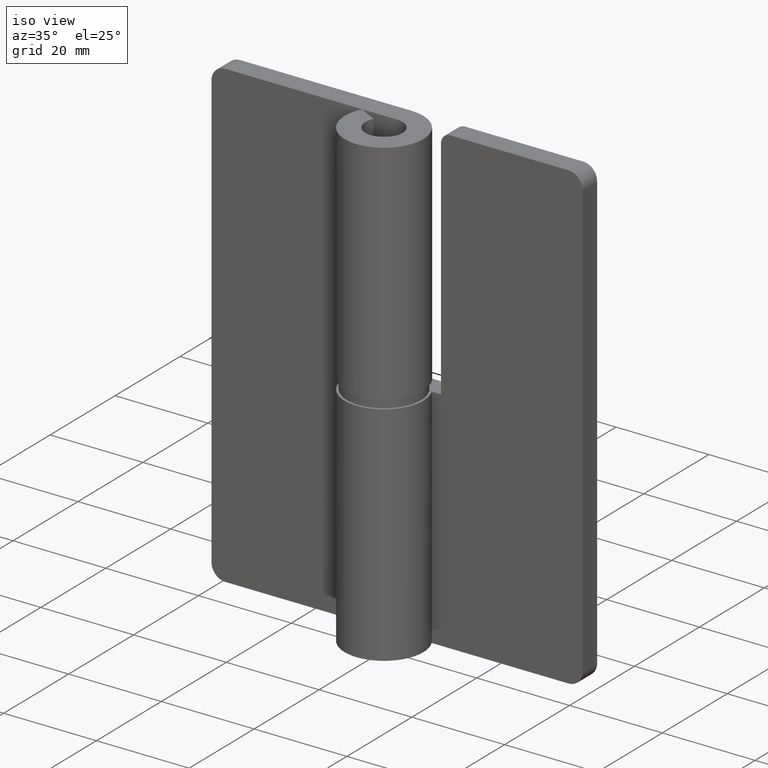
[diagram: clean part render]
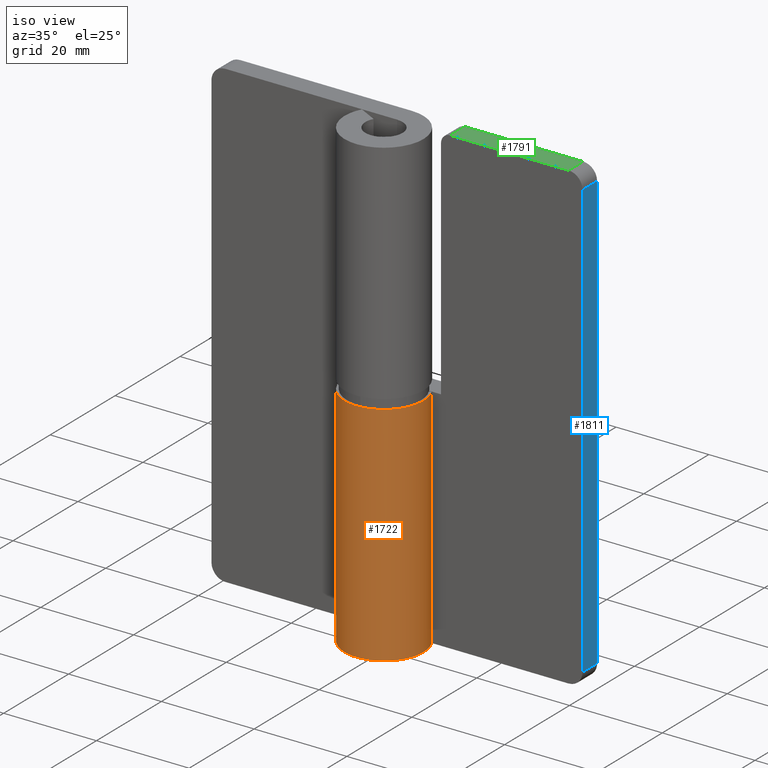
[diagram: same view with three faces highlighted in distinct colors, each labeled with its STEP entity id]
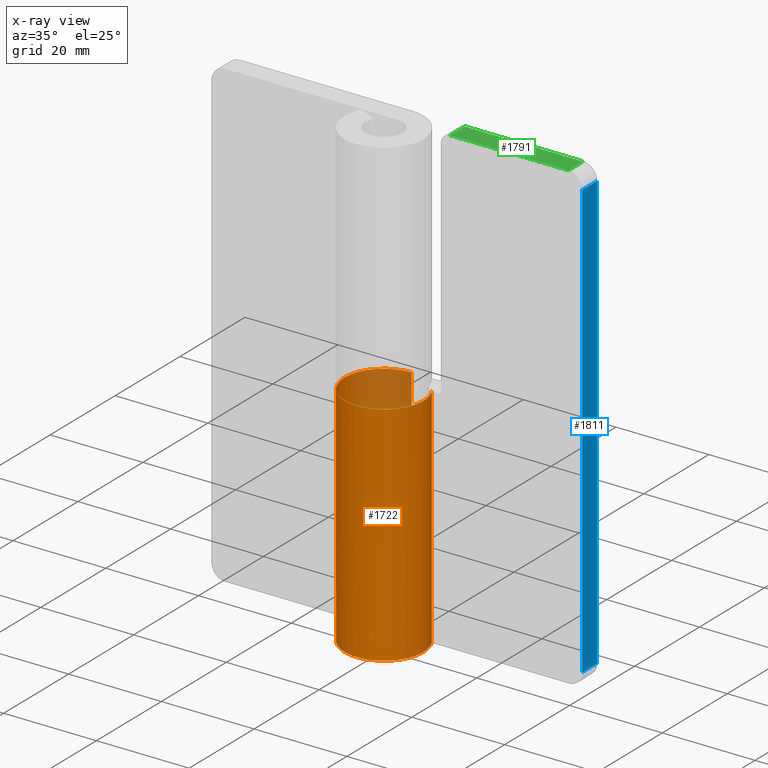
[diagram: x-ray of the same camera — body ghosted, the three highlighted faces saturated]
A machine part, iso view with three faces highlighted in distinct colors.
The next image is the same camera in x-ray (body ghosted, the three faces saturated) — at least one of them is partly hidden behind the body in this view.
Their STEP definitions:

[orange] entity #1722 — the highlighted face is a freeform B-spline surface patch.
#1559=CARTESIAN_POINT('',(0.0,8.500000000000000,49.0));
#1560=VERTEX_POINT('',#1559);
#1566=CARTESIAN_POINT('',(7.526453348025210,3.950000000000000,49.0));
#1567=VERTEX_POINT('',#1566);
#1568=CARTESIAN_POINT('',(0.0,8.500000000000000,49.0));
#1569=CARTESIAN_POINT('',(-6.454516851895557,8.500000000000002,49.000000000000007));
#1570=CARTESIAN_POINT('',(-8.187790666559613,2.282560842693863,49.0));
#1571=CARTESIAN_POINT('',(-9.921064481223665,-3.934878314612273,49.000000000000007));
#1572=CARTESIAN_POINT('',(-4.397442438509001,-7.274097882211925,49.0));
#1573=CARTESIAN_POINT('',(1.126179604205665,-10.613317449811577,49.000000000000007));
#1574=CARTESIAN_POINT('',(5.826042450526469,-6.189283429013697,49.0));
#1575=CARTESIAN_POINT('',(10.525905296847272,-1.765249408215817,49.000000000000007));
#1576=CARTESIAN_POINT('',(7.526453348025215,3.950000000000005,49.0));
#1584=(BOUNDED_CURVE()B_SPLINE_CURVE(2,(#1568,#1569,#1570,#1571,#1572,#1573,#1574,#1575,#1576),.UNSPECIFIED.,.F.,.U.)B_SPLINE_CURVE_WITH_KNOTS((3,2,2,2,3),(0.0,0.250000000000000,0.500000000000000,0.750000000000000,1.0),.UNSPECIFIED.)CURVE()GEOMETRIC_REPRESENTATION_ITEM()RATIONAL_B_SPLINE_CURVE((1.0,0.796409621278112,1.0,0.796409621278112,1.0,0.796409621278112,1.0,0.796409621278112,1.0))REPRESENTATION_ITEM(''));
#1585=EDGE_CURVE('',#1560,#1567,#1584,.T.);
#1650=CARTESIAN_POINT('',(7.526453348025210,3.950000000000000,0.0));
#1651=VERTEX_POINT('',#1650);
#1657=CARTESIAN_POINT('',(-1.561373E-015,8.500000000000000,0.0));
#1658=VERTEX_POINT('',#1657);
#1659=CARTESIAN_POINT('',(7.526453348025213,3.950000000000008,0.0));
#1660=CARTESIAN_POINT('',(10.525905296847272,-1.765249408215813,0.0));
#1661=CARTESIAN_POINT('',(5.826042450526471,-6.189283429013694,0.0));
#1662=CARTESIAN_POINT('',(1.126179604205669,-10.613317449811577,0.0));
#1663=CARTESIAN_POINT('',(-4.397442438508997,-7.274097882211928,0.0));
#1664=CARTESIAN_POINT('',(-9.921064481223665,-3.934878314612279,0.0));
#1665=CARTESIAN_POINT('',(-8.187790666559614,2.282560842693859,0.0));
#1666=CARTESIAN_POINT('',(-6.454516851895560,8.500000000000000,0.0));
#1667=CARTESIAN_POINT('',(0.0,8.500000000000000,0.0));
#1675=(BOUNDED_CURVE()B_SPLINE_CURVE(2,(#1659,#1660,#1661,#1662,#1663,#1664,#1665,#1666,#1667),.UNSPECIFIED.,.F.,.U.)B_SPLINE_CURVE_WITH_KNOTS((3,2,2,2,3),(0.0,0.250000000000000,0.500000000000000,0.750000000000000,1.0),.UNSPECIFIED.)CURVE()GEOMETRIC_REPRESENTATION_ITEM()RATIONAL_B_SPLINE_CURVE((1.0,0.796409621278111,1.0,0.796409621278111,1.0,0.796409621278111,1.0,0.796409621278111,1.0))REPRESENTATION_ITEM(''));
#1676=EDGE_CURVE('',#1651,#1658,#1675,.T.);
#1686=CARTESIAN_POINT('',(7.398023415489145,4.185600260879471,-1.225000000000001));
#1687=CARTESIAN_POINT('',(7.398023415489145,4.185600260879471,50.255625000000002));
#1688=CARTESIAN_POINT('',(12.505762019074337,-4.842297157490172,-1.225000000000001));
#1689=CARTESIAN_POINT('',(12.505762019074337,-4.842297157490172,50.255625000000002));
#1690=CARTESIAN_POINT('',(2.650148651972263,-8.076305598629213,-1.225000000000001));
#1691=CARTESIAN_POINT('',(2.650148651972263,-8.076305598629213,50.255625000000002));
#1692=CARTESIAN_POINT('',(-7.205464715129814,-11.310314039768256,-1.225000000000001));
#1693=CARTESIAN_POINT('',(-7.205464715129814,-11.310314039768256,50.255625000000002));
#1694=CARTESIAN_POINT('',(-8.439619871176324,-1.011343873292216,-1.225000000000001));
#1695=CARTESIAN_POINT('',(-8.439619871176324,-1.011343873292216,50.255625000000002));
#1696=CARTESIAN_POINT('',(-9.673775027222836,9.287626293183827,-1.225000000000001));
#1697=CARTESIAN_POINT('',(-9.673775027222836,9.287626293183827,50.255625000000002));
#1698=CARTESIAN_POINT('',(0.666902313686684,8.473797336731586,-1.225000000000001));
#1699=CARTESIAN_POINT('',(0.666902313686684,8.473797336731586,50.255625000000002));
#1707=(BOUNDED_SURFACE()B_SPLINE_SURFACE(1,2,((#1686,#1688,#1690,#1692,#1694,#1696,#1698),(#1687,#1689,#1691,#1693,#1695,#1697,#1699)),.UNSPECIFIED.,.F.,.F.,.U.)B_SPLINE_SURFACE_WITH_KNOTS((2,2),(3,2,2,3),(0.0,51.480625000000003),(0.0,16.095933225470048,32.191866450940097,48.287799676410160),.UNSPECIFIED.)GEOMETRIC_REPRESENTATION_ITEM()RATIONAL_B_SPLINE_SURFACE(((1.0,0.633830967398710,1.0,0.633830967398710,1.0,0.633830967398710,1.0),(1.0,0.633830967398710,1.0,0.633830967398710,1.0,0.633830967398710,1.0)))REPRESENTATION_ITEM('')SURFACE());
#1708=ORIENTED_EDGE('',*,*,#1585,.F.);
#1709=CARTESIAN_POINT('',(-1.561373E-015,8.500000000000000,0.0));
#1710=CARTESIAN_POINT('',(0.0,8.500000000000000,49.0));
#1711=QUASI_UNIFORM_CURVE('',1,(#1709,#1710),.UNSPECIFIED.,.F.,.U.);
#1712=EDGE_CURVE('',#1658,#1560,#1711,.T.);
#1713=ORIENTED_EDGE('',*,*,#1712,.F.);
#1714=ORIENTED_EDGE('',*,*,#1676,.F.);
#1715=CARTESIAN_POINT('',(7.526453348025210,3.950000000000000,0.0));
#1716=CARTESIAN_POINT('',(7.526453348025210,3.950000000000000,49.0));
#1717=QUASI_UNIFORM_CURVE('',1,(#1715,#1716),.UNSPECIFIED.,.F.,.U.);
#1718=EDGE_CURVE('',#1651,#1567,#1717,.T.);
#1719=ORIENTED_EDGE('',*,*,#1718,.T.);
#1720=EDGE_LOOP('',(#1708,#1713,#1714,#1719));
#1721=FACE_OUTER_BOUND('',#1720,.T.);
#1722=ADVANCED_FACE('',(#1721),#1707,.T.);

[blue] entity #1811 — the highlighted face is a freeform B-spline surface patch.
#1349=CARTESIAN_POINT('',(40.000007999999802,4.0,97.0));
#1350=VERTEX_POINT('',#1349);
#1366=CARTESIAN_POINT('',(40.000007999999802,8.500000000000000,97.0));
#1367=VERTEX_POINT('',#1366);
#1368=CARTESIAN_POINT('',(40.000007999999802,8.500000000000000,97.0));
#1369=CARTESIAN_POINT('',(40.000007999999802,4.0,97.0));
#1370=QUASI_UNIFORM_CURVE('',1,(#1368,#1369),.UNSPECIFIED.,.F.,.U.);
#1371=EDGE_CURVE('',#1367,#1350,#1370,.T.);
#1412=CARTESIAN_POINT('',(40.000007999999802,4.0,3.0));
#1413=VERTEX_POINT('',#1412);
#1434=CARTESIAN_POINT('',(40.000007999999802,8.500000000000000,3.0));
#1435=VERTEX_POINT('',#1434);
#1449=CARTESIAN_POINT('',(40.000007999999802,8.500000000000000,3.0));
#1450=CARTESIAN_POINT('',(40.000007999999802,4.0,3.0));
#1451=QUASI_UNIFORM_CURVE('',1,(#1449,#1450),.UNSPECIFIED.,.F.,.U.);
#1452=EDGE_CURVE('',#1435,#1413,#1451,.T.);
#1792=CARTESIAN_POINT('',(40.0,3.775225008721873,-1.695299817809760));
#1793=CARTESIAN_POINT('',(40.0,3.775225008721873,101.695302339086200));
#1794=CARTESIAN_POINT('',(40.0,8.724775111977531,-1.695299817809760));
#1795=CARTESIAN_POINT('',(40.0,8.724775111977531,101.695302339086200));
#1796=B_SPLINE_SURFACE_WITH_KNOTS('',1,1,((#1792,#1794),(#1793,#1795)),.UNSPECIFIED.,.F.,.F.,.U.,(2,2),(2,2),(0.0,103.390602156895990),(0.0,4.949550103255658),.UNSPECIFIED.);
#1797=CARTESIAN_POINT('',(40.000007999999802,8.500000000000000,3.0));
#1798=CARTESIAN_POINT('',(40.000007999999802,8.500000000000000,97.0));
#1799=QUASI_UNIFORM_CURVE('',1,(#1797,#1798),.UNSPECIFIED.,.F.,.U.);
#1800=EDGE_CURVE('',#1435,#1367,#1799,.T.);
#1801=ORIENTED_EDGE('',*,*,#1800,.T.);
#1802=ORIENTED_EDGE('',*,*,#1371,.T.);
#1803=CARTESIAN_POINT('',(40.000007999999802,4.0,3.0));
#1804=CARTESIAN_POINT('',(40.000007999999802,4.0,97.0));
#1805=QUASI_UNIFORM_CURVE('',1,(#1803,#1804),.UNSPECIFIED.,.F.,.U.);
#1806=EDGE_CURVE('',#1413,#1350,#1805,.T.);
#1807=ORIENTED_EDGE('',*,*,#1806,.F.);
#1808=ORIENTED_EDGE('',*,*,#1452,.F.);
#1809=EDGE_LOOP('',(#1801,#1802,#1807,#1808));
#1810=FACE_OUTER_BOUND('',#1809,.T.);
#1811=ADVANCED_FACE('',(#1810),#1796,.F.);

[green] entity #1791 — the highlighted face is a freeform B-spline surface patch.
#1351=CARTESIAN_POINT('',(37.000007999999802,4.0,100.0));
#1352=VERTEX_POINT('',#1351);
#1373=CARTESIAN_POINT('',(37.000007999999802,8.500000000000000,100.0));
#1374=VERTEX_POINT('',#1373);
#1388=CARTESIAN_POINT('',(37.000007999999802,8.500000000000000,100.0));
#1389=CARTESIAN_POINT('',(37.000007999999802,4.0,100.0));
#1390=QUASI_UNIFORM_CURVE('',1,(#1388,#1389),.UNSPECIFIED.,.F.,.U.);
#1391=EDGE_CURVE('',#1374,#1352,#1390,.T.);
#1471=CARTESIAN_POINT('',(11.500007999999800,4.0,100.0));
#1472=VERTEX_POINT('',#1471);
#1488=CARTESIAN_POINT('',(11.500007999999800,8.500000000000000,100.0));
#1489=VERTEX_POINT('',#1488);
#1490=CARTESIAN_POINT('',(11.500007999999800,8.500000000000000,100.0));
#1491=CARTESIAN_POINT('',(11.500007999999800,4.0,100.0));
#1492=QUASI_UNIFORM_CURVE('',1,(#1490,#1491),.UNSPECIFIED.,.F.,.U.);
#1493=EDGE_CURVE('',#1489,#1472,#1492,.T.);
#1772=CARTESIAN_POINT('',(10.226282661776150,3.775225008721873,100.0));
#1773=CARTESIAN_POINT('',(38.273731742309089,3.775225008721873,100.0));
#1774=CARTESIAN_POINT('',(10.226282661776150,8.724775111977531,100.0));
#1775=CARTESIAN_POINT('',(38.273731742309089,8.724775111977531,100.0));
#1776=B_SPLINE_SURFACE_WITH_KNOTS('',1,1,((#1772,#1774),(#1773,#1775)),.UNSPECIFIED.,.F.,.F.,.U.,(2,2),(2,2),(0.0,28.047449080532939),(0.0,4.949550103255657),.UNSPECIFIED.);
#1777=CARTESIAN_POINT('',(37.000007999999802,4.0,100.0));
#1778=CARTESIAN_POINT('',(11.500007999999800,4.0,100.0));
#1779=QUASI_UNIFORM_CURVE('',1,(#1777,#1778),.UNSPECIFIED.,.F.,.U.);
#1780=EDGE_CURVE('',#1352,#1472,#1779,.T.);
#1781=ORIENTED_EDGE('',*,*,#1780,.F.);
#1782=ORIENTED_EDGE('',*,*,#1391,.F.);
#1783=CARTESIAN_POINT('',(11.500007999999800,8.500000000000000,100.0));
#1784=CARTESIAN_POINT('',(37.000007999999802,8.500000000000000,100.0));
#1785=QUASI_UNIFORM_CURVE('',1,(#1783,#1784),.UNSPECIFIED.,.F.,.U.);
#1786=EDGE_CURVE('',#1489,#1374,#1785,.T.);
#1787=ORIENTED_EDGE('',*,*,#1786,.F.);
#1788=ORIENTED_EDGE('',*,*,#1493,.T.);
#1789=EDGE_LOOP('',(#1781,#1782,#1787,#1788));
#1790=FACE_OUTER_BOUND('',#1789,.T.);
#1791=ADVANCED_FACE('',(#1790),#1776,.T.);